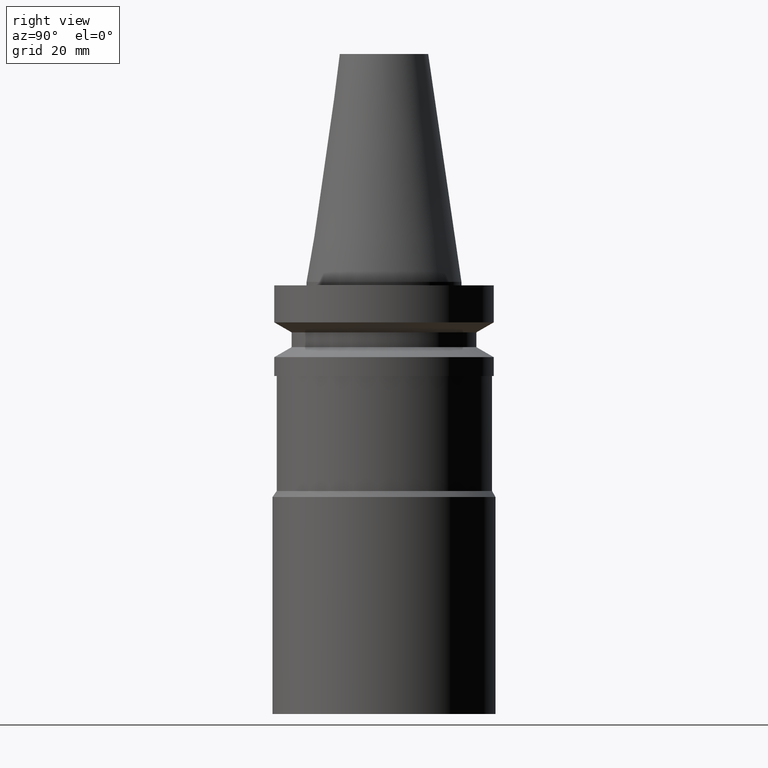
[diagram: clean part render]
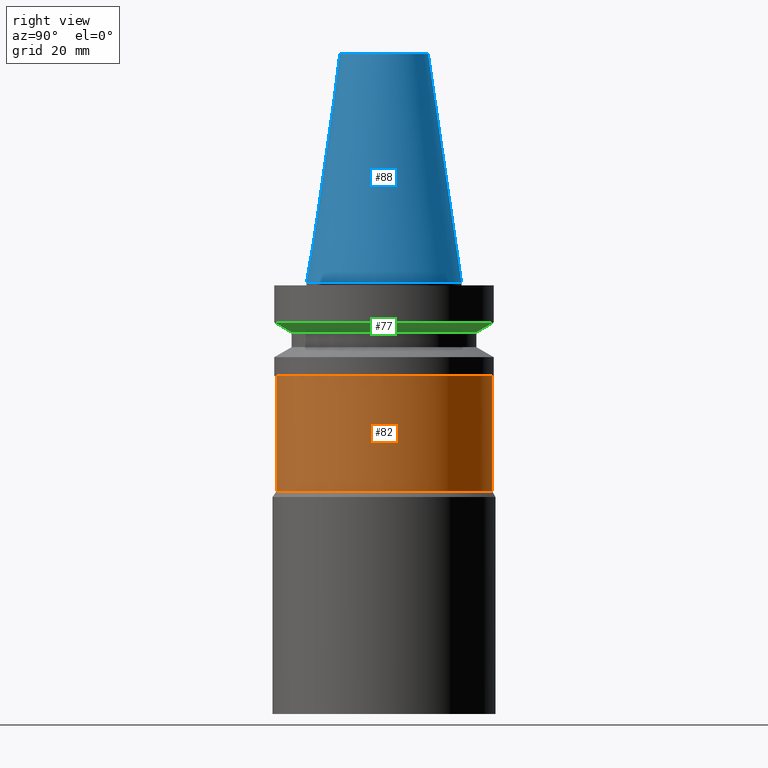
[diagram: same view with three faces highlighted in distinct colors, each labeled with its STEP entity id]
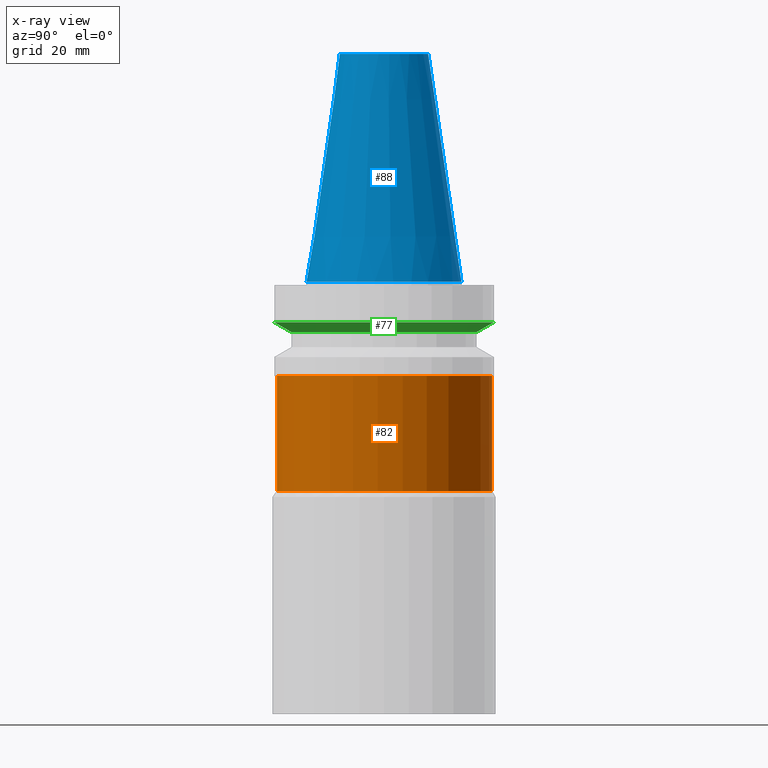
[diagram: x-ray of the same camera — body ghosted, the three highlighted faces saturated]
A machine part, right view with three faces highlighted in distinct colors.
The next image is the same camera in x-ray (body ghosted, the three faces saturated) — at least one of them is partly hidden behind the body in this view.
Their STEP definitions:

[orange] entity #82 — the highlighted cylindrical surface (bore or boss wall) has radius 31 mm, axis along (-0, -0, 1).
#82=ADVANCED_FACE('',(#111,#112),#113,.T.);
#111=FACE_BOUND('',#151,.T.);
#112=FACE_BOUND('',#152,.T.);
#113=CYLINDRICAL_SURFACE('',#153,31.0);
#151=EDGE_LOOP('',(#205));
#152=EDGE_LOOP('',(#206));
#153=AXIS2_PLACEMENT_3D('',#207,#208,#209);
#205=ORIENTED_EDGE('',*,*,#246,.F.);
#206=ORIENTED_EDGE('',*,*,#245,.T.);
#207=CARTESIAN_POINT('',(2.66360678814549E-015,5.32721357629099E-015,-43.5));
#208=DIRECTION('',(-6.12323399573677E-017,-1.22464679914735E-016,1.0));
#209=DIRECTION('',(-1.23259516440783E-032,1.0,1.22464679914735E-016));
#245=EDGE_CURVE('',#265,#265,#266,.T.);
#246=EDGE_CURVE('',#267,#267,#268,.T.);
#265=VERTEX_POINT('',#291);
#266=CIRCLE('',#292,31.0);
#267=VERTEX_POINT('',#293);
#268=CIRCLE('',#294,31.0);
#291=CARTESIAN_POINT('',(1.65327317884893E-015,31.0,-27.0));
#292=AXIS2_PLACEMENT_3D('',#324,#325,#326);
#293=CARTESIAN_POINT('',(3.67394039744206E-015,31.0,-60.0));
#294=AXIS2_PLACEMENT_3D('',#327,#328,#329);
#324=CARTESIAN_POINT('',(1.65327317884893E-015,3.30654635769785E-015,-27.0));
#325=DIRECTION('',(6.12323399573677E-017,1.22464679914735E-016,-1.0));
#326=DIRECTION('',(-1.23259516440783E-032,1.0,1.22464679914735E-016));
#327=CARTESIAN_POINT('',(3.67394039744206E-015,7.34788079488412E-015,-60.0));
#328=DIRECTION('',(6.12323399573677E-017,1.22464679914735E-016,-1.0));
#329=DIRECTION('',(-1.23259516440783E-032,1.0,1.22464679914735E-016));

[blue] entity #88 — the highlighted conical surface has half-angle 8.297 deg.
#88=ADVANCED_FACE('',(#127,#128),#129,.T.);
#127=FACE_BOUND('',#167,.T.);
#128=FACE_BOUND('',#168,.T.);
#129=CONICAL_SURFACE('',#169,17.4562500026599,0.144812498159292);
#167=EDGE_LOOP('',(#233));
#168=EDGE_LOOP('',(#234));
#169=AXIS2_PLACEMENT_3D('',#235,#236,#237);
#233=ORIENTED_EDGE('',*,*,#249,.F.);
#234=ORIENTED_EDGE('',*,*,#250,.T.);
#235=CARTESIAN_POINT('',(-2.00229751660592E-015,-4.00459503321184E-015,32.7));
#236=DIRECTION('',(6.12323399573677E-017,1.22464679914735E-016,-1.0));
#237=DIRECTION('',(-1.23259516440783E-032,1.0,1.22464679914735E-016));
#249=EDGE_CURVE('',#273,#273,#274,.T.);
#250=EDGE_CURVE('',#275,#275,#276,.T.);
#273=VERTEX_POINT('',#299);
#274=CIRCLE('',#300,22.225);
#275=VERTEX_POINT('',#301);
#276=CIRCLE('',#302,12.6875000053197);
#299=CARTESIAN_POINT('',(-4.76010997148954E-031,22.225,6.02177751110499E-015));
#300=AXIS2_PLACEMENT_3D('',#336,#337,#338);
#301=CARTESIAN_POINT('',(-4.00459503321185E-015,12.6875000053197,65.4));
#302=AXIS2_PLACEMENT_3D('',#339,#340,#341);
#336=CARTESIAN_POINT('',(-2.02245122175225E-031,-4.0449024435045E-031,3.30291349825984E-015));
#337=DIRECTION('',(6.12323399573677E-017,1.22464679914735E-016,-1.0));
#338=DIRECTION('',(-1.23259516440783E-032,1.0,1.22464679914735E-016));
#339=CARTESIAN_POINT('',(-4.00459503321185E-015,-8.00919006642369E-015,65.4));
#340=DIRECTION('',(6.12323399573677E-017,1.22464679914735E-016,-1.0));
#341=DIRECTION('',(-1.23259516440783E-032,1.0,1.22464679914735E-016));

[green] entity #77 — the highlighted conical surface has half-angle 60 deg.
#77=ADVANCED_FACE('',(#96,#97),#98,.T.);
#96=FACE_BOUND('',#136,.T.);
#97=FACE_BOUND('',#137,.T.);
#98=CONICAL_SURFACE('',#138,29.0,1.04719755058882);
#136=EDGE_LOOP('',(#180));
#137=EDGE_LOOP('',(#181));
#138=AXIS2_PLACEMENT_3D('',#182,#183,#184);
#180=ORIENTED_EDGE('',*,*,#241,.F.);
#181=ORIENTED_EDGE('',*,*,#240,.T.);
#182=CARTESIAN_POINT('',(7.9867641352326E-016,1.59735282704652E-015,-13.043375675));
#183=DIRECTION('',(-6.12323399573677E-017,-1.22464679914735E-016,1.0));
#184=DIRECTION('',(-1.23259516440783E-032,1.0,1.22464679914735E-016));
#240=EDGE_CURVE('',#255,#255,#256,.T.);
#241=EDGE_CURVE('',#257,#257,#258,.T.);
#255=VERTEX_POINT('',#281);
#256=CIRCLE('',#282,31.5);
#257=VERTEX_POINT('',#283);
#258=CIRCLE('',#284,26.5);
#281=CARTESIAN_POINT('',(7.10295143505464E-016,31.5,-11.6));
#282=AXIS2_PLACEMENT_3D('',#309,#310,#311);
#283=CARTESIAN_POINT('',(8.87057683541055E-016,26.5,-14.48675135));
#284=AXIS2_PLACEMENT_3D('',#312,#313,#314);
#309=CARTESIAN_POINT('',(7.10295143505465E-016,1.42059028701093E-015,-11.6));
#310=DIRECTION('',(6.12323399573677E-017,1.22464679914735E-016,-1.0));
#311=DIRECTION('',(-1.23259516440783E-032,1.0,1.22464679914735E-016));
#312=CARTESIAN_POINT('',(8.87057683541055E-016,1.77411536708211E-015,-14.48675135));
#313=DIRECTION('',(6.12323399573677E-017,1.22464679914735E-016,-1.0));
#314=DIRECTION('',(-1.23259516440783E-032,1.0,1.22464679914735E-016));